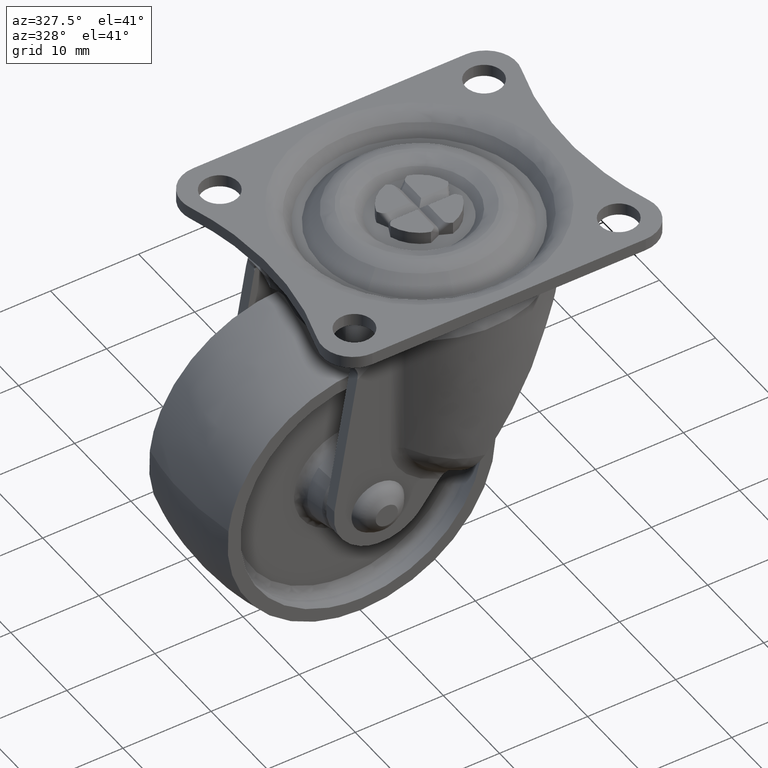
[diagram: clean part render]
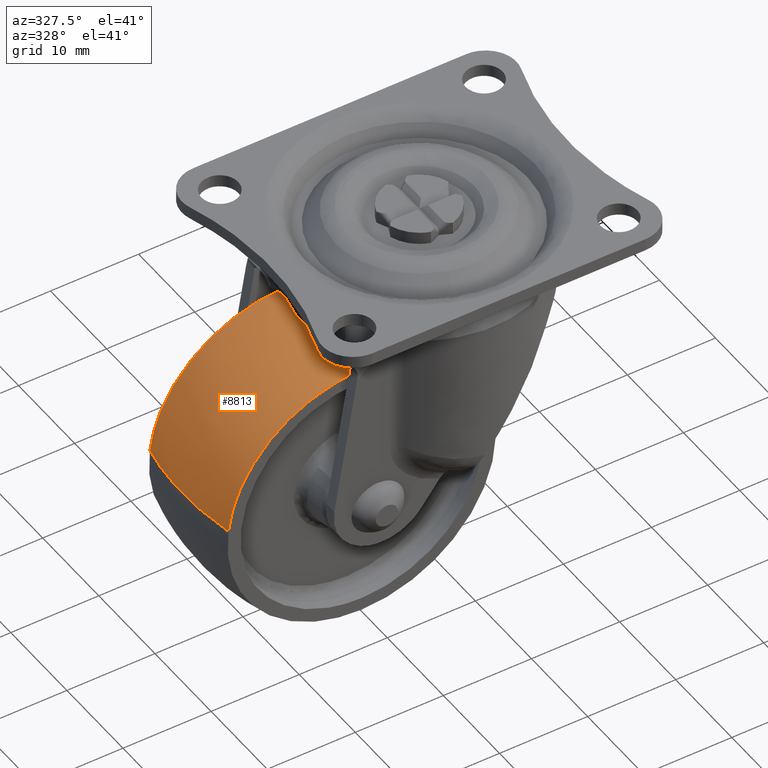
[diagram: same view with one face highlighted and labeled with its STEP entity id]
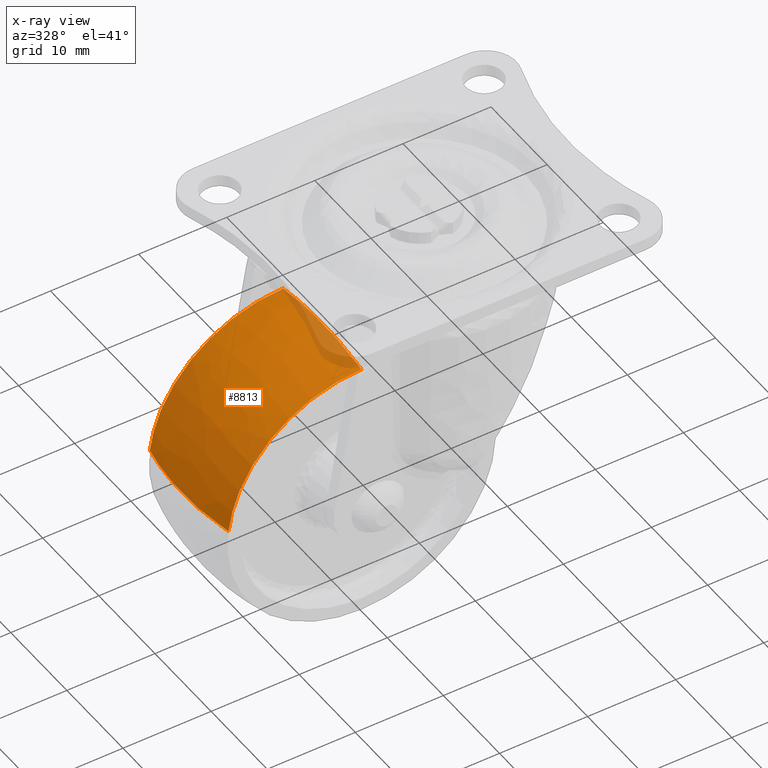
[diagram: x-ray of the same camera — body ghosted, the highlighted face saturated]
A machine part, auxiliary view. The second image highlights one B-rep face of the part: STEP entity #8813.
The next image is the same camera in x-ray: the body ghosted, the highlighted face saturated — about 6% of this face is hidden behind the body in this view.
In plain terms, the highlighted face is a freeform B-spline surface patch.
Its self-contained STEP definition (entity closure, byte-faithful):
#8655=CARTESIAN_POINT('',(-15.123161329356810,-6.999994010070928,1.757939859969984));
#8656=VERTEX_POINT('',#8655);
#8674=CARTESIAN_POINT('',(-15.123161481919629,6.999993350228306,1.757939863298866));
#8675=VERTEX_POINT('',#8674);
#8676=CARTESIAN_POINT('',(-15.123161329356810,-6.999994010070928,1.757939859969985));
#8677=CARTESIAN_POINT('',(-15.892986457992237,-3.542899786616469,1.847425634816879));
#8678=CARTESIAN_POINT('',(-15.892986459368622,4.273107E-010,1.847425631331407));
#8679=CARTESIAN_POINT('',(-15.892986460745018,3.542899444773267,1.847425627845936));
#8680=CARTESIAN_POINT('',(-15.123161481919627,6.999993350228306,1.757939863298866));
#8688=(BOUNDED_CURVE()B_SPLINE_CURVE(2,(#8676,#8677,#8678,#8679,#8680),.UNSPECIFIED.,.F.,.U.)B_SPLINE_CURVE_WITH_KNOTS((3,2,3),(0.392474257596174,0.500000000000000,0.607525732302730),.UNSPECIFIED.)CURVE()GEOMETRIC_REPRESENTATION_ITEM()RATIONAL_B_SPLINE_CURVE((0.913605214072380,0.929316855187676,0.956886118190660,0.929316857777565,0.913605217024321))REPRESENTATION_ITEM(''));
#8689=EDGE_CURVE('',#8656,#8675,#8688,.T.);
#8708=CARTESIAN_POINT('',(0.0,6.999992188046920,15.224991747273020));
#8709=VERTEX_POINT('',#8708);
#8725=CARTESIAN_POINT('',(0.0,-6.999992856377462,15.224991593443450));
#8726=VERTEX_POINT('',#8725);
#8727=CARTESIAN_POINT('',(0.0,-6.999992856377462,15.224991593443452));
#8728=CARTESIAN_POINT('',(0.0,-3.542899188416985,16.000000000000004));
#8729=CARTESIAN_POINT('',(0.0,0.0,16.0));
#8730=CARTESIAN_POINT('',(0.0,3.542898841316561,15.999999999999998));
#8731=CARTESIAN_POINT('',(0.0,6.999992188046920,15.224991747273021));
#8739=(BOUNDED_CURVE()B_SPLINE_CURVE(2,(#8727,#8728,#8729,#8730,#8731),.UNSPECIFIED.,.F.,.U.)B_SPLINE_CURVE_WITH_KNOTS((3,2,3),(0.392474275234462,0.500000000000000,0.607525714534675),.UNSPECIFIED.)CURVE()GEOMETRIC_REPRESENTATION_ITEM()RATIONAL_B_SPLINE_CURVE((0.954769017816341,0.971188568883503,1.0,0.971188571624855,0.954769020940917))REPRESENTATION_ITEM(''));
#8740=EDGE_CURVE('',#8726,#8709,#8739,.T.);
#8760=CARTESIAN_POINT('',(0.0,-7.701941419295758,15.059299708360085));
#8761=CARTESIAN_POINT('',(0.0,-3.908418370602196,16.0));
#8762=CARTESIAN_POINT('',(0.0,0.0,16.0));
#8763=CARTESIAN_POINT('',(0.0,3.908417353485043,15.999999999999996));
#8764=CARTESIAN_POINT('',(0.0,7.701939473882684,15.059300190774545));
#8765=CARTESIAN_POINT('',(-13.410181410560263,-7.701941419295759,15.059299708360072));
#8766=CARTESIAN_POINT('',(-14.247867213231103,-3.908418370602197,16.000000000000007));
#8767=CARTESIAN_POINT('',(-14.247867213231098,0.0,16.0));
#8768=CARTESIAN_POINT('',(-14.247867213231096,3.908417353485044,16.0));
#8769=CARTESIAN_POINT('',(-13.410181840146342,7.701939473882685,15.059300190774538));
#8770=CARTESIAN_POINT('',(-14.958577672266857,-7.701941419295756,1.738810435031223));
#8771=CARTESIAN_POINT('',(-15.892986220561308,-3.908418370602196,1.847427669233181));
#8772=CARTESIAN_POINT('',(-15.892986220561312,0.0,1.847427669233180));
#8773=CARTESIAN_POINT('',(-15.892986220561312,3.908417353485043,1.847427669233181));
#8774=CARTESIAN_POINT('',(-14.958578151454763,7.701939473882685,1.738810490732837));
#8782=(BOUNDED_SURFACE()B_SPLINE_SURFACE(2,2,((#8760,#8765,#8770),(#8761,#8766,#8771),(#8762,#8767,#8772),(#8763,#8768,#8773),(#8764,#8769,#8774)),.UNSPECIFIED.,.F.,.F.,.U.)B_SPLINE_SURFACE_WITH_KNOTS((3,2,3),(3,3),(0.0,7.954001302760398,15.908000601186551),(0.0,24.362143301496900),.UNSPECIFIED.)GEOMETRIC_REPRESENTATION_ITEM()RATIONAL_B_SPLINE_SURFACE(((0.951612059501926,0.695188997866246,0.910584369640218),(0.968310303975288,0.707387703973058,0.926562687974931),(1.0,0.730538238691624,0.956886118190660),(0.968310311960796,0.707387709806777,0.926562695616153),(0.951612067917532,0.695189004014167,0.910584377692993)))REPRESENTATION_ITEM('')SURFACE());
#8783=CARTESIAN_POINT('',(0.0,-6.999992856377462,15.224991593443450));
#8784=CARTESIAN_POINT('',(-13.557729733000485,-6.999993433224195,15.224990870241376));
#8785=CARTESIAN_POINT('',(-15.123161329356801,-6.999994010070928,1.757939859969985));
#8793=(BOUNDED_CURVE()B_SPLINE_CURVE(2,(#8783,#8784,#8785),.UNSPECIFIED.,.F.,.U.)B_SPLINE_CURVE_WITH_KNOTS((3,3),(0.500000000000000,0.730000022717255),.UNSPECIFIED.)CURVE()GEOMETRIC_REPRESENTATION_ITEM()RATIONAL_B_SPLINE_CURVE((1.0,0.730538212076704,0.956886162903731))REPRESENTATION_ITEM(''));
#8794=EDGE_CURVE('',#8726,#8656,#8793,.T.);
#8795=ORIENTED_EDGE('',*,*,#8794,.F.);
#8796=ORIENTED_EDGE('',*,*,#8740,.T.);
#8797=CARTESIAN_POINT('',(0.0,6.999992188046920,15.224991747273020));
#8798=CARTESIAN_POINT('',(-13.557729824437386,6.999992769137615,15.224990959468849));
#8799=CARTESIAN_POINT('',(-15.123161481919631,6.999993350228307,1.757939863298865));
#8807=(BOUNDED_CURVE()B_SPLINE_CURVE(2,(#8797,#8798,#8799),.UNSPECIFIED.,.F.,.U.)B_SPLINE_CURVE_WITH_KNOTS((3,3),(0.500000000000000,0.730000022876233),.UNSPECIFIED.)CURVE()GEOMETRIC_REPRESENTATION_ITEM()RATIONAL_B_SPLINE_CURVE((1.0,0.730538211890450,0.956886163216637))REPRESENTATION_ITEM(''));
#8808=EDGE_CURVE('',#8709,#8675,#8807,.T.);
#8809=ORIENTED_EDGE('',*,*,#8808,.T.);
#8810=ORIENTED_EDGE('',*,*,#8689,.F.);
#8811=EDGE_LOOP('',(#8795,#8796,#8809,#8810));
#8812=FACE_OUTER_BOUND('',#8811,.T.);
#8813=ADVANCED_FACE('',(#8812),#8782,.T.);